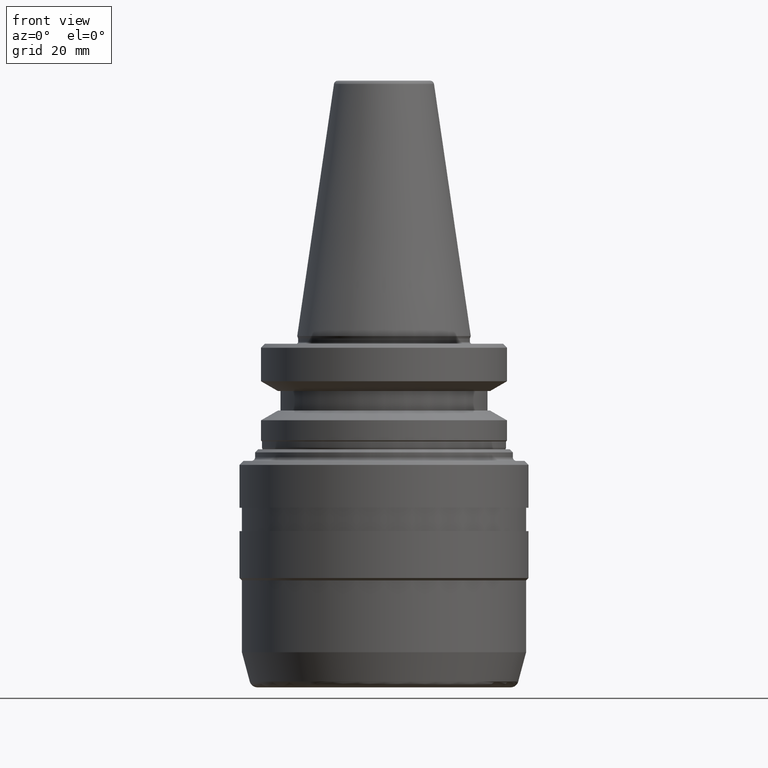
[diagram: clean part render]
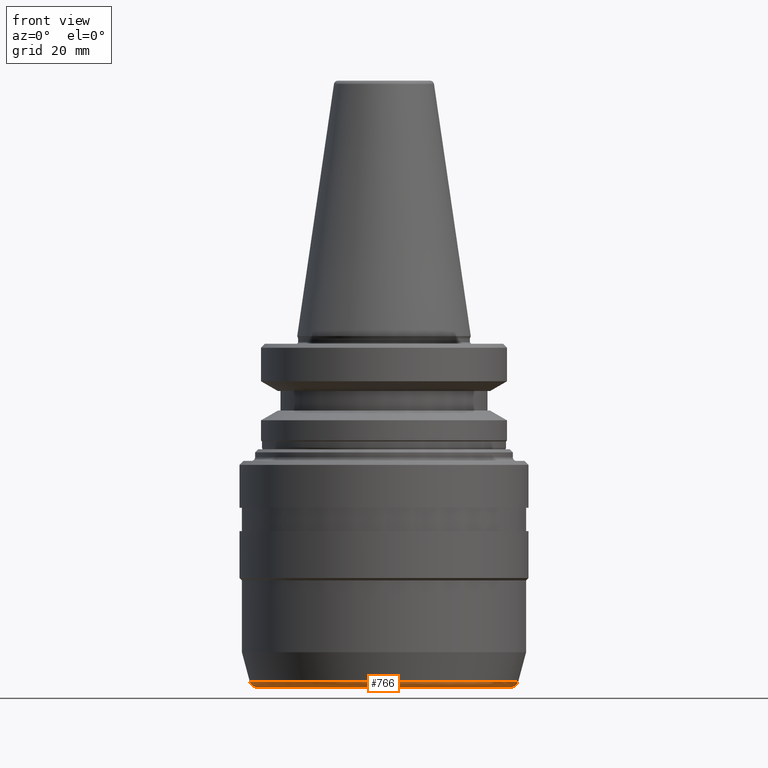
[diagram: same view with one face highlighted and labeled with its STEP entity id]
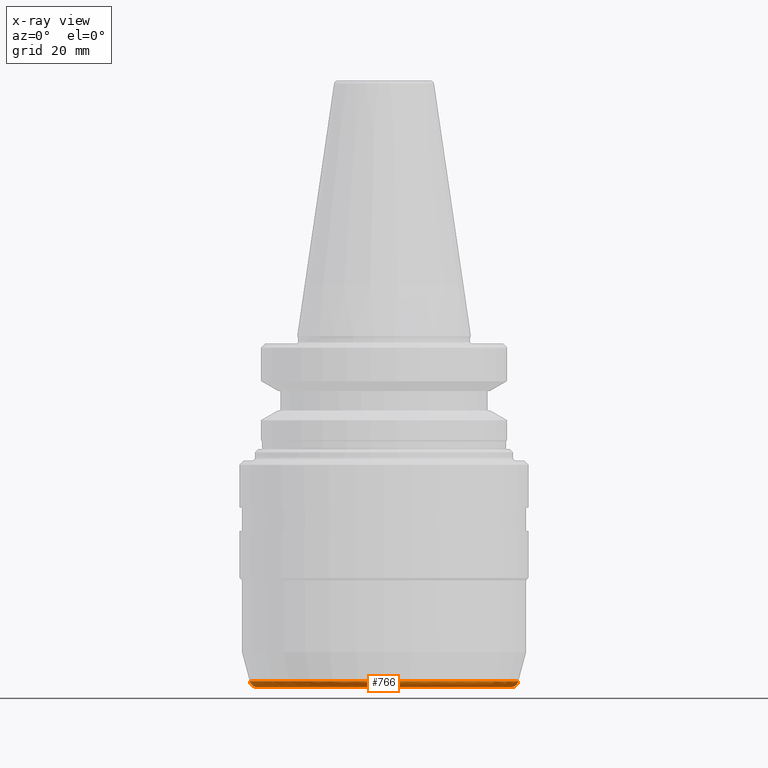
[diagram: x-ray of the same camera — body ghosted, the highlighted face saturated]
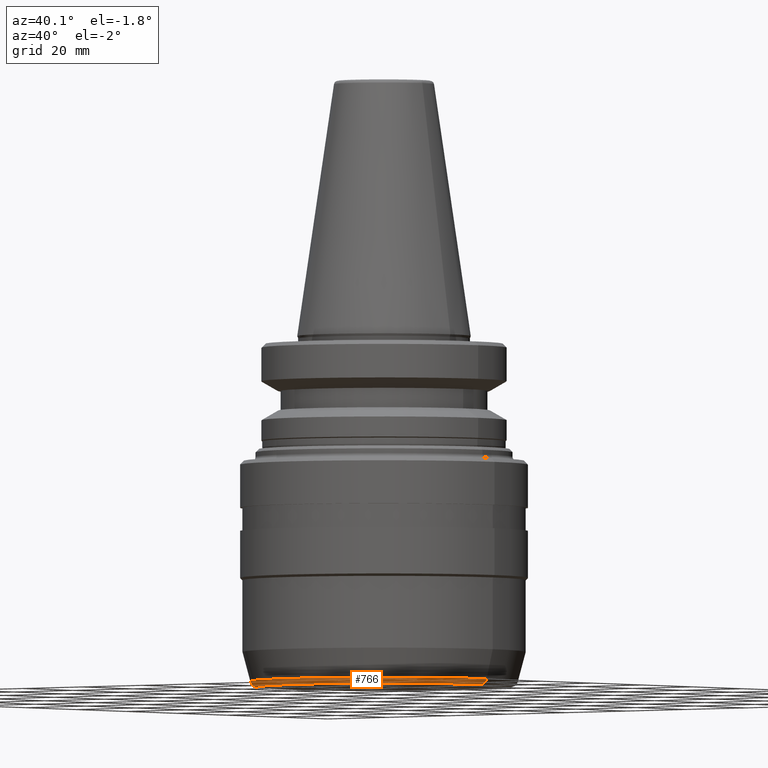
[diagram: same view with one face highlighted and labeled with its STEP entity id]
A machine part, front view. The second image highlights one B-rep face of the part: STEP entity #766.
The next image is the same camera in x-ray: the body ghosted, the highlighted face saturated — about 0% of this face is hidden behind the body in this view.
A second angle (auxiliary view) of the same face is appended — the face is thin or edge-on in the first view.
In plain terms, the highlighted toroidal blend (fillet) surface has major radius 32.4538 mm and minor (blend) radius 2 mm.
Its self-contained STEP definition (entity closure, byte-faithful):
#18 = CARTESIAN_POINT ( 'NONE',  ( 32.45380329216218500, 0.0000000000000000000, -88.00000000000096600 ) ) ;
#29 = EDGE_CURVE ( 'NONE', #70, #1301, #1163, .T. ) ;
#70 = VERTEX_POINT ( 'NONE', #186 ) ;
#186 = CARTESIAN_POINT ( 'NONE',  ( -32.45380329216218500, 4.092736429328299300E-015, -90.00000000000118000 ) ) ;
#230 = EDGE_CURVE ( 'NONE', #1301, #799, #571, .T. ) ;
#297 = EDGE_CURVE ( 'NONE', #1568, #799, #1400, .T. ) ;
#333 = AXIS2_PLACEMENT_3D ( 'NONE', #951, #719, #1059 ) ;
#341 = DIRECTION ( 'NONE',  ( 1.224646799147353200E-016, 1.000000000000000000, 0.0000000000000000000 ) ) ;
#342 = DIRECTION ( 'NONE',  ( -0.0000000000000000000, -0.0000000000000000000, 1.000000000000000000 ) ) ;
#382 = CIRCLE ( 'NONE', #1407, 2.000000000000112800 ) ;
#412 = AXIS2_PLACEMENT_3D ( 'NONE', #853, #342, #421 ) ;
#421 = DIRECTION ( 'NONE',  ( 1.000000000000000000, 0.0000000000000000000, 0.0000000000000000000 ) ) ;
#467 = AXIS2_PLACEMENT_3D ( 'NONE', #18, #1210, #634 ) ;
#571 = CIRCLE ( 'NONE', #467, 2.000000000000112800 ) ;
#589 = CARTESIAN_POINT ( 'NONE',  ( -34.38565494474038800, 4.211028226466167800E-015, -88.51763809020597800 ) ) ;
#592 = ORIENTED_EDGE ( 'NONE', *, *, #29, .T. ) ;
#634 = DIRECTION ( 'NONE',  ( 0.0000000000000000000, 0.0000000000000000000, -1.000000000000000000 ) ) ;
#719 = DIRECTION ( 'NONE',  ( -0.0000000000000000000, -0.0000000000000000000, 1.000000000000000000 ) ) ;
#766 = ADVANCED_FACE ( 'NONE', ( #804 ), #1226, .T. ) ;
#786 = CARTESIAN_POINT ( 'NONE',  ( 34.38565494474038800, 0.0000000000000000000, -88.51763809020597800 ) ) ;
#799 = VERTEX_POINT ( 'NONE', #786 ) ;
#804 = FACE_OUTER_BOUND ( 'NONE', #1151, .T. ) ;
#853 = CARTESIAN_POINT ( 'NONE',  ( 0.0000000000000000000, 0.0000000000000000000, -88.51763809020597800 ) ) ;
#881 = DIRECTION ( 'NONE',  ( 1.000000000000000000, 0.0000000000000000000, 0.0000000000000000000 ) ) ;
#896 = ORIENTED_EDGE ( 'NONE', *, *, #230, .T. ) ;
#951 = CARTESIAN_POINT ( 'NONE',  ( 0.0000000000000000000, 0.0000000000000000000, -88.00000000000096600 ) ) ;
#1010 = CARTESIAN_POINT ( 'NONE',  ( 32.45380329216218500, 0.0000000000000000000, -90.00000000000118000 ) ) ;
#1019 = ORIENTED_EDGE ( 'NONE', *, *, #1158, .F. ) ;
#1059 = DIRECTION ( 'NONE',  ( 1.000000000000000000, 0.0000000000000000000, 0.0000000000000000000 ) ) ;
#1075 = AXIS2_PLACEMENT_3D ( 'NONE', #1332, #1524, #881 ) ;
#1111 = CARTESIAN_POINT ( 'NONE',  ( -32.45380329216218500, 3.974444632190426000E-015, -88.00000000000096600 ) ) ;
#1151 = EDGE_LOOP ( 'NONE', ( #1019, #592, #896, #1199 ) ) ;
#1158 = EDGE_CURVE ( 'NONE', #70, #1568, #382, .T. ) ;
#1163 = CIRCLE ( 'NONE', #1075, 32.45380329216218500 ) ;
#1199 = ORIENTED_EDGE ( 'NONE', *, *, #297, .F. ) ;
#1210 = DIRECTION ( 'NONE',  ( 0.0000000000000000000, -1.000000000000000000, 0.0000000000000000000 ) ) ;
#1226 = TOROIDAL_SURFACE ( 'NONE', #333, 32.45380329216218500, 2.000000000000109200 ) ;
#1227 = DIRECTION ( 'NONE',  ( -1.000000000000000000, 1.224646799147350700E-016, 0.0000000000000000000 ) ) ;
#1301 = VERTEX_POINT ( 'NONE', #1010 ) ;
#1332 = CARTESIAN_POINT ( 'NONE',  ( 0.0000000000000000000, 0.0000000000000000000, -90.00000000000118000 ) ) ;
#1400 = CIRCLE ( 'NONE', #412, 34.38565494474033100 ) ;
#1407 = AXIS2_PLACEMENT_3D ( 'NONE', #1111, #341, #1227 ) ;
#1524 = DIRECTION ( 'NONE',  ( -0.0000000000000000000, -0.0000000000000000000, 1.000000000000000000 ) ) ;
#1568 = VERTEX_POINT ( 'NONE', #589 ) ;